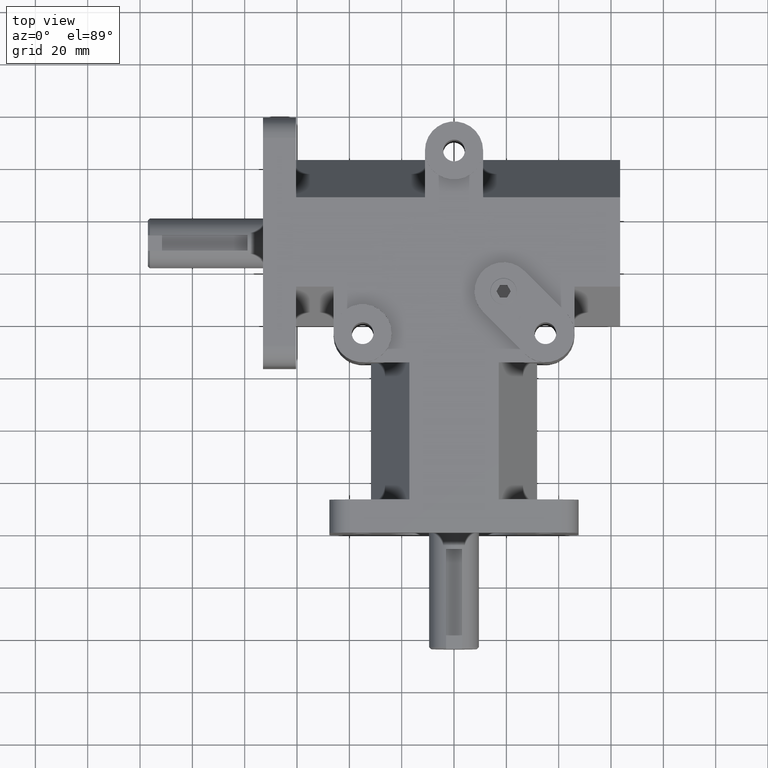
[diagram: clean part render]
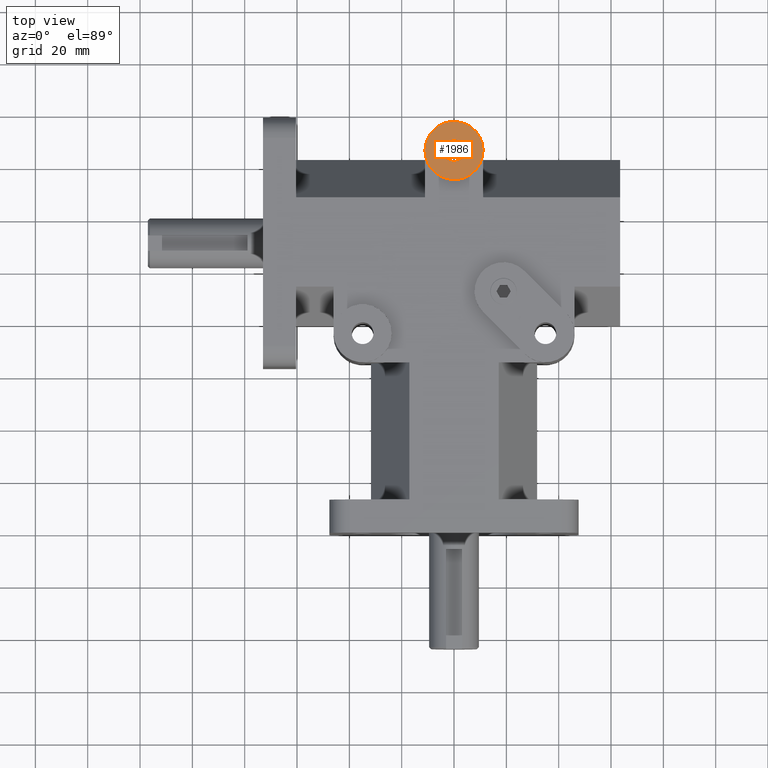
[diagram: same view with one face highlighted and labeled with its STEP entity id]
A machine part, top view. The second image highlights one B-rep face of the part: STEP entity #1986.
In plain terms, the highlighted planar face has unit normal (0, 0, 1).
Its self-contained STEP definition (entity closure, byte-faithful):
#39=FACE_BOUND('',#339,.T.);
#96=PLANE('',#2193);
#204=FACE_OUTER_BOUND('',#338,.T.);
#338=EDGE_LOOP('',(#1713));
#339=EDGE_LOOP('',(#1714));
#843=CIRCLE('',#2179,4.15925);
#849=CIRCLE('',#2194,11.1125);
#1014=VERTEX_POINT('',#3276);
#1022=VERTEX_POINT('',#3309);
#1261=EDGE_CURVE('',#1014,#1014,#843,.T.);
#1276=EDGE_CURVE('',#1022,#1022,#849,.T.);
#1713=ORIENTED_EDGE('',*,*,#1276,.F.);
#1714=ORIENTED_EDGE('',*,*,#1261,.T.);
#1986=ADVANCED_FACE('',(#204,#39),#96,.T.);
#2179=AXIS2_PLACEMENT_3D('',#3278,#2664,#2665);
#2193=AXIS2_PLACEMENT_3D('',#3308,#2701,#2702);
#2194=AXIS2_PLACEMENT_3D('',#3310,#2703,#2704);
#2664=DIRECTION('center_axis',(0.,0.,-1.));
#2665=DIRECTION('ref_axis',(1.,0.,0.));
#2701=DIRECTION('center_axis',(0.,0.,1.));
#2702=DIRECTION('ref_axis',(-1.,0.,0.));
#2703=DIRECTION('center_axis',(0.,0.,-1.));
#2704=DIRECTION('ref_axis',(1.,0.,0.));
#3276=CARTESIAN_POINT('',(-4.15925,146.05,33.3375));
#3278=CARTESIAN_POINT('Origin',(0.,146.05,33.3375));
#3308=CARTESIAN_POINT('Origin',(1.01022727272727,146.05,33.3375));
#3309=CARTESIAN_POINT('',(-11.1125,146.05,33.3375));
#3310=CARTESIAN_POINT('Origin',(0.,146.05,33.3375));